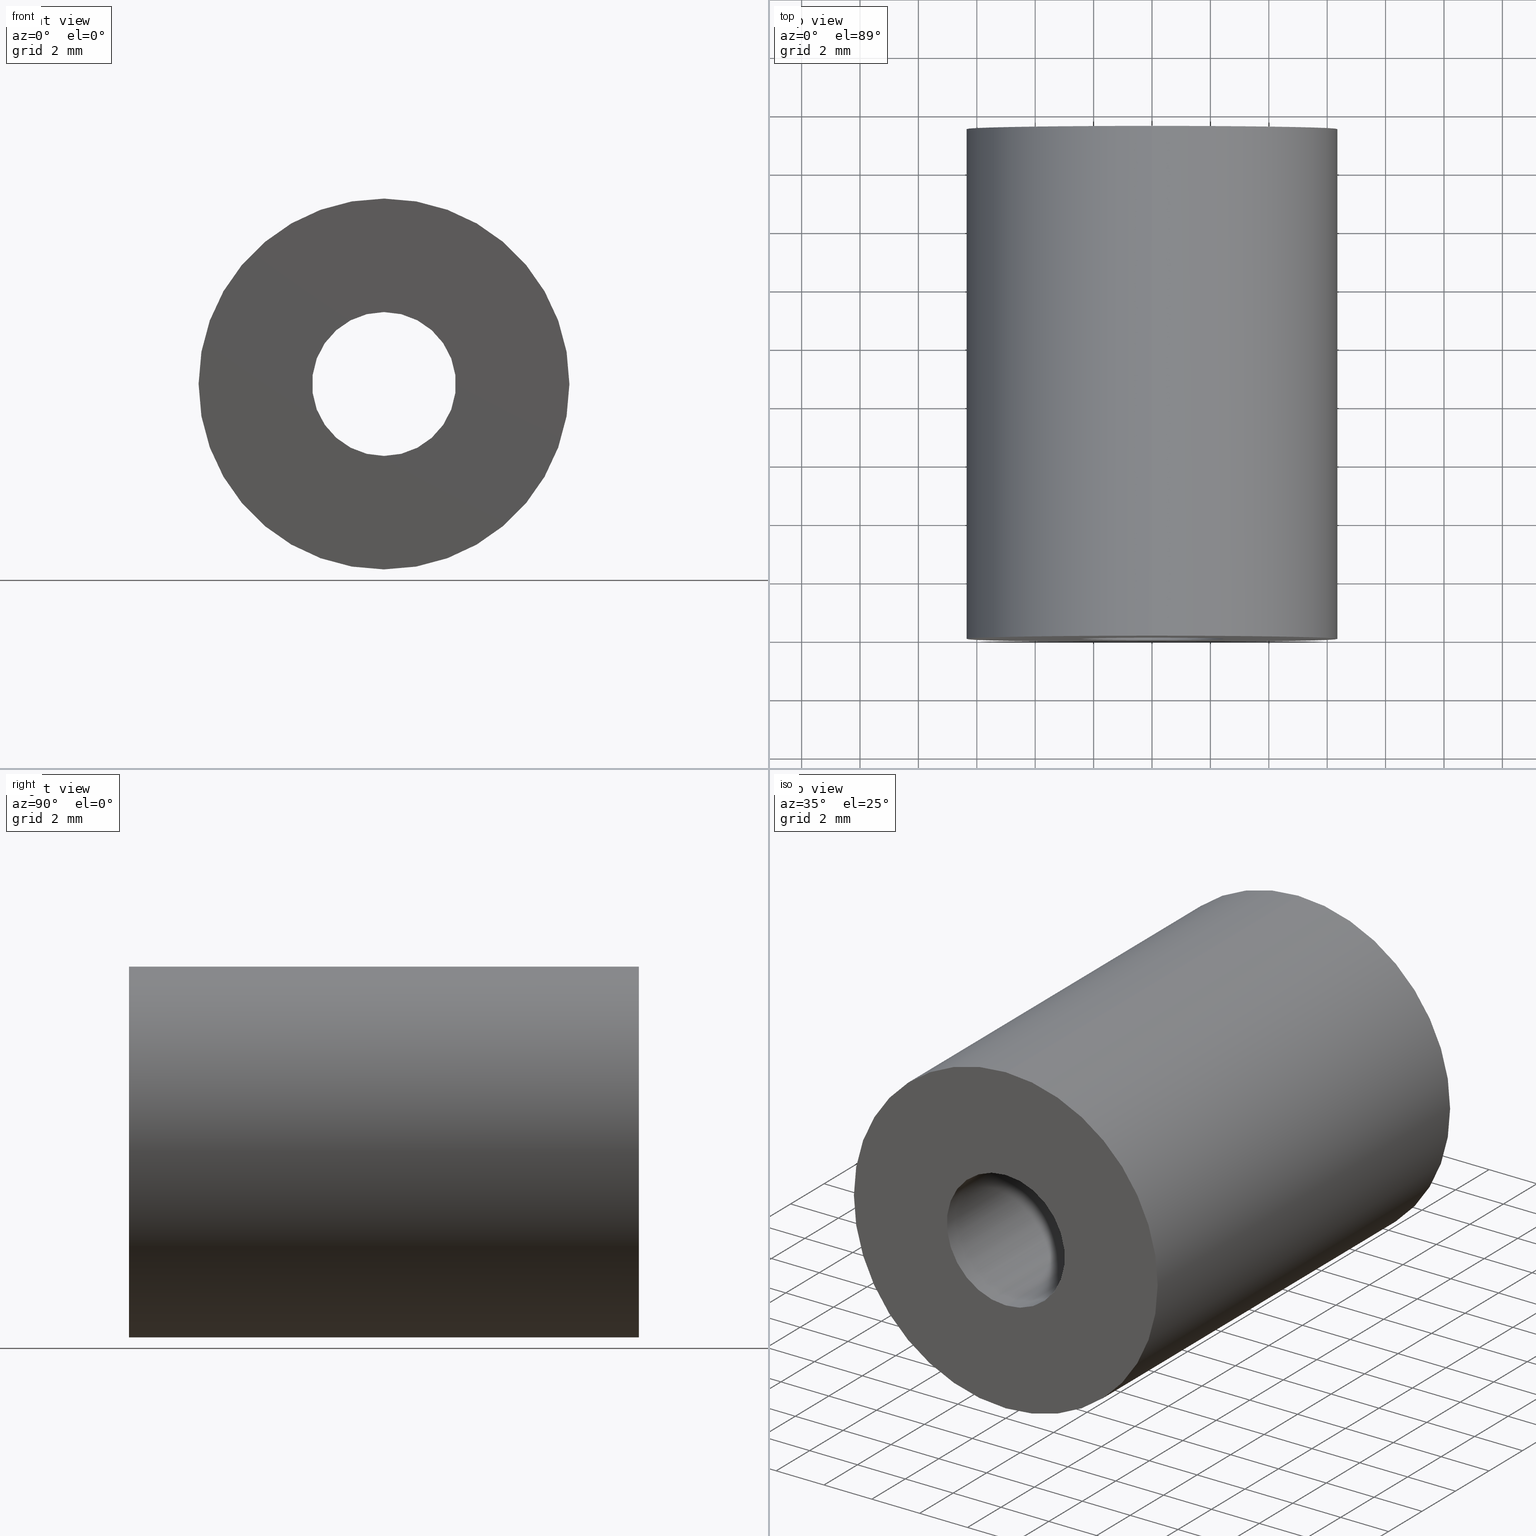
[diagram: canonical four-view strip — front | top / right | iso, engineering-drawing reading convention]
A machine part, canonical four-view strip (front | top / right | iso — engineering-drawing reading convention). The complete STEP part file that produces these views, byte-faithful:
ISO-10303-21;
HEADER;
FILE_DESCRIPTION (( 'STEP AP214' ),
    '1' );
FILE_NAME ('am-1240  11-16'''' Thick Nylon Spacer REV2.STEP',
    '2018-06-21T17:03:05',
    ( '' ),
    ( '' ),
    'SwSTEP 2.0',
    'SolidWorks 2017',
    '' );
FILE_SCHEMA (( 'AUTOMOTIVE_DESIGN' ));
ENDSEC;

DATA;
#1 = PRODUCT_DEFINITION_SHAPE ( 'NONE', 'NONE',  #87 ) ;
#2 = LINE ( 'NONE', #136, #22 ) ;
#3 = CIRCLE ( 'NONE', #106, 0.09700000000000000300 ) ;
#4 = UNCERTAINTY_MEASURE_WITH_UNIT (LENGTH_MEASURE( 1.000000000000000100E-005 ), #168, 'distance_accuracy_value', 'NONE');
#5 = AXIS2_PLACEMENT_3D ( 'NONE', #15, #33, #182 ) ;
#6 = DIRECTION ( 'NONE',  ( 0.0000000000000000000, 1.000000000000000000, 0.0000000000000000000 ) ) ;
#7 = LINE ( 'NONE', #59, #86 ) ;
#8 = EDGE_LOOP ( 'NONE', ( #67, #135 ) ) ;
#9 = DIRECTION ( 'NONE',  ( -0.0000000000000000000, -1.000000000000000000, -0.0000000000000000000 ) ) ;
#10 = CARTESIAN_POINT ( 'NONE',  ( 3.061616997868383000E-017, 0.0000000000000000000, 0.2500000000000000000 ) ) ;
#11 = FACE_BOUND ( 'NONE', #89, .T. ) ;
#12 = CARTESIAN_POINT ( 'NONE',  ( 0.0000000000000000000, 0.0000000000000000000, 0.0000000000000000000 ) ) ;
#13 = CARTESIAN_POINT ( 'NONE',  ( 0.0000000000000000000, 0.6875000000000000000, 0.0000000000000000000 ) ) ;
#14 = EDGE_CURVE ( 'NONE', #208, #220, #95, .T. ) ;
#15 = CARTESIAN_POINT ( 'NONE',  ( 0.0000000000000000000, 0.6875000000000000000, 0.0000000000000000000 ) ) ;
#16 = ORIENTED_EDGE ( 'NONE', *, *, #126, .F. ) ;
#17 = CYLINDRICAL_SURFACE ( 'NONE', #153, 0.2500000000000000000 ) ;
#18 = VERTEX_POINT ( 'NONE', #97 ) ;
#19 = ORIENTED_EDGE ( 'NONE', *, *, #68, .F. ) ;
#20 = FACE_OUTER_BOUND ( 'NONE', #183, .T. ) ;
#21 = ADVANCED_FACE ( 'NONE', ( #146 ), #36, .F. ) ;
#22 = VECTOR ( 'NONE', #117, 39.37007874015748100 ) ;
#23 = CARTESIAN_POINT ( 'NONE',  ( 0.0000000000000000000, 0.6875000000000000000, 0.0000000000000000000 ) ) ;
#24 = SHAPE_DEFINITION_REPRESENTATION ( #1, #138 ) ;
#25 =( GEOMETRIC_REPRESENTATION_CONTEXT ( 3 ) GLOBAL_UNCERTAINTY_ASSIGNED_CONTEXT ( ( #4 ) ) GLOBAL_UNIT_ASSIGNED_CONTEXT ( ( #168, #174, #47 ) ) REPRESENTATION_CONTEXT ( 'NONE', 'WORKASPACE' ) );
#26 = DIRECTION ( 'NONE',  ( 0.0000000000000000000, 1.000000000000000000, 0.0000000000000000000 ) ) ;
#27 = DIRECTION ( 'NONE',  ( 0.0000000000000000000, 0.0000000000000000000, -1.000000000000000000 ) ) ;
#28 = ORIENTED_EDGE ( 'NONE', *, *, #126, .T. ) ;
#29 = DIRECTION ( 'NONE',  ( -0.0000000000000000000, -1.000000000000000000, -0.0000000000000000000 ) ) ;
#30 = CARTESIAN_POINT ( 'NONE',  ( 0.0000000000000000000, 0.6875000000000000000, 0.0000000000000000000 ) ) ;
#31 = CARTESIAN_POINT ( 'NONE',  ( 0.0000000000000000000, 0.6875000000000000000, -0.09700000000000000300 ) ) ;
#32 = CIRCLE ( 'NONE', #56, 0.2500000000000000000 ) ;
#33 = DIRECTION ( 'NONE',  ( 0.0000000000000000000, 1.000000000000000000, 0.0000000000000000000 ) ) ;
#34 = DIRECTION ( 'NONE',  ( 0.0000000000000000000, 0.0000000000000000000, 1.000000000000000000 ) ) ;
#35 = DIRECTION ( 'NONE',  ( 1.000000000000000000, 0.0000000000000000000, 0.0000000000000000000 ) ) ;
#36 = CYLINDRICAL_SURFACE ( 'NONE', #100, 0.09700000000000000300 ) ;
#37 = EDGE_CURVE ( 'NONE', #74, #18, #123, .T. ) ;
#38 = ORIENTED_EDGE ( 'NONE', *, *, #43, .F. ) ;
#39 = DIMENSIONAL_EXPONENTS ( 1.000000000000000000, 0.0000000000000000000, 0.0000000000000000000, 0.0000000000000000000, 0.0000000000000000000, 0.0000000000000000000, 0.0000000000000000000 ) ;
#40 = CIRCLE ( 'NONE', #48, 0.2500000000000000000 ) ;
#41 = DIRECTION ( 'NONE',  ( 0.0000000000000000000, 1.000000000000000000, 0.0000000000000000000 ) ) ;
#42 = ORIENTED_EDGE ( 'NONE', *, *, #94, .T. ) ;
#43 = EDGE_CURVE ( 'NONE', #220, #208, #3, .T. ) ;
#44 = CARTESIAN_POINT ( 'NONE',  ( 1.187907395172932600E-017, 0.0000000000000000000, 0.09700000000000000300 ) ) ;
#45 = FACE_OUTER_BOUND ( 'NONE', #115, .T. ) ;
#46 = COLOUR_RGB ( '',1.000000000000000000, 1.000000000000000000, 1.000000000000000000 ) ;
#47 =( NAMED_UNIT ( * ) SI_UNIT ( $, .STERADIAN. ) SOLID_ANGLE_UNIT ( ) );
#48 = AXIS2_PLACEMENT_3D ( 'NONE', #112, #6, #211 ) ;
#49 = DIRECTION ( 'NONE',  ( -0.0000000000000000000, -1.000000000000000000, -0.0000000000000000000 ) ) ;
#50 =( CONVERSION_BASED_UNIT ( 'INCH', #119 ) LENGTH_UNIT ( ) NAMED_UNIT ( #92 ) );
#51 = ORIENTED_EDGE ( 'NONE', *, *, #121, .T. ) ;
#52 = PRODUCT_CONTEXT ( 'NONE', #79, 'mechanical' ) ;
#53 = AXIS2_PLACEMENT_3D ( 'NONE', #23, #178, #145 ) ;
#54 = COLOUR_RGB ( '',1.000000000000000000, 1.000000000000000000, 1.000000000000000000 ) ;
#55 = EDGE_CURVE ( 'NONE', #74, #129, #7, .T. ) ;
#56 = AXIS2_PLACEMENT_3D ( 'NONE', #169, #76, #199 ) ;
#57 = CYLINDRICAL_SURFACE ( 'NONE', #114, 0.09700000000000000300 ) ;
#58 = ORIENTED_EDGE ( 'NONE', *, *, #55, .T. ) ;
#59 = CARTESIAN_POINT ( 'NONE',  ( 3.061616997868383000E-017, 0.6875000000000000000, 0.2500000000000000000 ) ) ;
#60 = UNCERTAINTY_MEASURE_WITH_UNIT (LENGTH_MEASURE( 1.000000000000000100E-005 ), #103, 'distance_accuracy_value', 'NONE');
#61 = FACE_OUTER_BOUND ( 'NONE', #8, .T. ) ;
#62 = ORIENTED_EDGE ( 'NONE', *, *, #14, .F. ) ;
#63 =( LENGTH_UNIT ( ) NAMED_UNIT ( * ) SI_UNIT ( $, .METRE. ) );
#64 = DIRECTION ( 'NONE',  ( 0.0000000000000000000, 1.000000000000000000, 0.0000000000000000000 ) ) ;
#65 = STYLED_ITEM ( 'NONE', ( #212 ), #138 ) ;
#66 = VECTOR ( 'NONE', #29, 39.37007874015748100 ) ;
#67 = ORIENTED_EDGE ( 'NONE', *, *, #75, .T. ) ;
#68 = EDGE_CURVE ( 'NONE', #217, #141, #132, .T. ) ;
#69 = PRODUCT_DEFINITION_FORMATION_WITH_SPECIFIED_SOURCE ( 'ANY', '', #194, .NOT_KNOWN. ) ;
#70 = CARTESIAN_POINT ( 'NONE',  ( 0.0000000000000000000, 0.0000000000000000000, -0.2500000000000000000 ) ) ;
#71 = CARTESIAN_POINT ( 'NONE',  ( 0.0000000000000000000, 0.0000000000000000000, 0.0000000000000000000 ) ) ;
#72 =( GEOMETRIC_REPRESENTATION_CONTEXT ( 3 ) GLOBAL_UNCERTAINTY_ASSIGNED_CONTEXT ( ( #105 ) ) GLOBAL_UNIT_ASSIGNED_CONTEXT ( ( #50, #221, #83 ) ) REPRESENTATION_CONTEXT ( 'NONE', 'WORKASPACE' ) );
#73 = CARTESIAN_POINT ( 'NONE',  ( 0.0000000000000000000, 0.6875000000000000000, 0.0000000000000000000 ) ) ;
#74 = VERTEX_POINT ( 'NONE', #147 ) ;
#75 = EDGE_CURVE ( 'NONE', #18, #74, #40, .T. ) ;
#76 = DIRECTION ( 'NONE',  ( 0.0000000000000000000, 1.000000000000000000, 0.0000000000000000000 ) ) ;
#77 = CARTESIAN_POINT ( 'NONE',  ( 0.0000000000000000000, 0.6875000000000000000, -0.09700000000000000300 ) ) ;
#78 = FACE_OUTER_BOUND ( 'NONE', #193, .T. ) ;
#79 = APPLICATION_CONTEXT ( 'automotive_design' ) ;
#80 = DIRECTION ( 'NONE',  ( 0.0000000000000000000, -0.0000000000000000000, 1.000000000000000000 ) ) ;
#81 = CIRCLE ( 'NONE', #107, 0.2500000000000000000 ) ;
#82 = EDGE_LOOP ( 'NONE', ( #99, #51, #28, #62 ) ) ;
#83 =( NAMED_UNIT ( * ) SI_UNIT ( $, .STERADIAN. ) SOLID_ANGLE_UNIT ( ) );
#84 = VERTEX_POINT ( 'NONE', #70 ) ;
#85 = SURFACE_SIDE_STYLE ('',( #104 ) ) ;
#86 = VECTOR ( 'NONE', #127, 39.37007874015748100 ) ;
#87 = PRODUCT_DEFINITION ( 'UNKNOWN', '', #69, #209 ) ;
#88 = DIMENSIONAL_EXPONENTS ( 1.000000000000000000, 0.0000000000000000000, 0.0000000000000000000, 0.0000000000000000000, 0.0000000000000000000, 0.0000000000000000000, 0.0000000000000000000 ) ;
#89 = EDGE_LOOP ( 'NONE', ( #19, #176 ) ) ;
#90 = PRODUCT_RELATED_PRODUCT_CATEGORY ( 'part', '', ( #194 ) ) ;
#91 = AXIS2_PLACEMENT_3D ( 'NONE', #71, #163, #128 ) ;
#92 = DIMENSIONAL_EXPONENTS ( 1.000000000000000000, 0.0000000000000000000, 0.0000000000000000000, 0.0000000000000000000, 0.0000000000000000000, 0.0000000000000000000, 0.0000000000000000000 ) ;
#93 = DIRECTION ( 'NONE',  ( 0.0000000000000000000, 0.0000000000000000000, 1.000000000000000000 ) ) ;
#94 = EDGE_CURVE ( 'NONE', #84, #129, #81, .T. ) ;
#95 = CIRCLE ( 'NONE', #91, 0.09700000000000000300 ) ;
#96 = EDGE_LOOP ( 'NONE', ( #124, #164 ) ) ;
#97 = CARTESIAN_POINT ( 'NONE',  ( 0.0000000000000000000, 0.6875000000000000000, -0.2500000000000000000 ) ) ;
#98 = FILL_AREA_STYLE_COLOUR ( '', #46 ) ;
#99 = ORIENTED_EDGE ( 'NONE', *, *, #110, .F. ) ;
#100 = AXIS2_PLACEMENT_3D ( 'NONE', #197, #166, #213 ) ;
#101 = DIRECTION ( 'NONE',  ( 0.0000000000000000000, 1.000000000000000000, 0.0000000000000000000 ) ) ;
#102 = CIRCLE ( 'NONE', #139, 0.09700000000000000300 ) ;
#103 =( CONVERSION_BASED_UNIT ( 'INCH', #158 ) LENGTH_UNIT ( ) NAMED_UNIT ( #39 ) );
#104 = SURFACE_STYLE_FILL_AREA ( #202 ) ;
#105 = UNCERTAINTY_MEASURE_WITH_UNIT (LENGTH_MEASURE( 1.000000000000000100E-005 ), #50, 'distance_accuracy_value', 'NONE');
#106 = AXIS2_PLACEMENT_3D ( 'NONE', #179, #41, #93 ) ;
#107 = AXIS2_PLACEMENT_3D ( 'NONE', #148, #64, #186 ) ;
#108 = ORIENTED_EDGE ( 'NONE', *, *, #68, .T. ) ;
#109 = ADVANCED_FACE ( 'NONE', ( #45 ), #17, .T. ) ;
#110 = EDGE_CURVE ( 'NONE', #141, #208, #2, .T. ) ;
#111 = ORIENTED_EDGE ( 'NONE', *, *, #94, .F. ) ;
#112 = CARTESIAN_POINT ( 'NONE',  ( 0.0000000000000000000, 0.6875000000000000000, 0.0000000000000000000 ) ) ;
#113 = CARTESIAN_POINT ( 'NONE',  ( 0.0000000000000000000, 0.6875000000000000000, 0.0000000000000000000 ) ) ;
#114 = AXIS2_PLACEMENT_3D ( 'NONE', #30, #49, #201 ) ;
#115 = EDGE_LOOP ( 'NONE', ( #206, #58, #198, #140 ) ) ;
#116 = AXIS2_PLACEMENT_3D ( 'NONE', #113, #26, #165 ) ;
#117 = DIRECTION ( 'NONE',  ( -0.0000000000000000000, -1.000000000000000000, -0.0000000000000000000 ) ) ;
#118 = SURFACE_SIDE_STYLE ('',( #210 ) ) ;
#119 = LENGTH_MEASURE_WITH_UNIT ( LENGTH_MEASURE( 0.02539999999999999900 ), #207 );
#120 = SURFACE_STYLE_USAGE ( .BOTH. , #118 ) ;
#121 = EDGE_CURVE ( 'NONE', #141, #217, #102, .T. ) ;
#122 = ADVANCED_FACE ( 'NONE', ( #20 ), #216, .T. ) ;
#123 = CIRCLE ( 'NONE', #53, 0.2500000000000000000 ) ;
#124 = ORIENTED_EDGE ( 'NONE', *, *, #43, .T. ) ;
#125 = ADVANCED_FACE ( 'NONE', ( #78, #181 ), #218, .F. ) ;
#126 = EDGE_CURVE ( 'NONE', #217, #220, #161, .T. ) ;
#127 = DIRECTION ( 'NONE',  ( -0.0000000000000000000, -1.000000000000000000, -0.0000000000000000000 ) ) ;
#128 = DIRECTION ( 'NONE',  ( 0.0000000000000000000, 0.0000000000000000000, 1.000000000000000000 ) ) ;
#129 = VERTEX_POINT ( 'NONE', #10 ) ;
#130 = FILL_AREA_STYLE ('',( #151 ) ) ;
#131 = CARTESIAN_POINT ( 'NONE',  ( 1.187907395172932600E-017, 0.6875000000000000000, 0.09700000000000000300 ) ) ;
#132 = CIRCLE ( 'NONE', #116, 0.09700000000000000300 ) ;
#133 =( NAMED_UNIT ( * ) SI_UNIT ( $, .STERADIAN. ) SOLID_ANGLE_UNIT ( ) );
#134 = EDGE_CURVE ( 'NONE', #18, #84, #196, .T. ) ;
#135 = ORIENTED_EDGE ( 'NONE', *, *, #37, .T. ) ;
#136 = CARTESIAN_POINT ( 'NONE',  ( 1.187907395172932600E-017, 0.6875000000000000000, 0.09700000000000000300 ) ) ;
#137 = ORIENTED_EDGE ( 'NONE', *, *, #188, .F. ) ;
#138 = ADVANCED_BREP_SHAPE_REPRESENTATION ( 'am-1240  11-16'''''''' Thick Nylon Spacer REV2', ( #142, #185 ), #156 ) ;
#139 = AXIS2_PLACEMENT_3D ( 'NONE', #170, #101, #204 ) ;
#140 = ORIENTED_EDGE ( 'NONE', *, *, #134, .F. ) ;
#141 = VERTEX_POINT ( 'NONE', #131 ) ;
#142 = MANIFOLD_SOLID_BREP ( 'Boss-Extrude1', #160 ) ;
#143 = PRESENTATION_STYLE_ASSIGNMENT (( #120 ) ) ;
#144 = STYLED_ITEM ( 'NONE', ( #143 ), #142 ) ;
#145 = DIRECTION ( 'NONE',  ( 0.0000000000000000000, 0.0000000000000000000, 1.000000000000000000 ) ) ;
#146 = FACE_OUTER_BOUND ( 'NONE', #222, .T. ) ;
#147 = CARTESIAN_POINT ( 'NONE',  ( 3.061616997868383000E-017, 0.6875000000000000000, 0.2500000000000000000 ) ) ;
#148 = CARTESIAN_POINT ( 'NONE',  ( 0.0000000000000000000, 0.0000000000000000000, 0.0000000000000000000 ) ) ;
#149 = DIRECTION ( 'NONE',  ( -0.0000000000000000000, -1.000000000000000000, -0.0000000000000000000 ) ) ;
#150 =( NAMED_UNIT ( * ) PLANE_ANGLE_UNIT ( ) SI_UNIT ( $, .RADIAN. ) );
#151 = FILL_AREA_STYLE_COLOUR ( '', #54 ) ;
#152 =( LENGTH_UNIT ( ) NAMED_UNIT ( * ) SI_UNIT ( $, .METRE. ) );
#153 = AXIS2_PLACEMENT_3D ( 'NONE', #73, #9, #27 ) ;
#154 = SURFACE_STYLE_USAGE ( .BOTH. , #85 ) ;
#155 = APPLICATION_PROTOCOL_DEFINITION ( 'draft international standard', 'automotive_design', 1998, #205 ) ;
#156 =( GEOMETRIC_REPRESENTATION_CONTEXT ( 3 ) GLOBAL_UNCERTAINTY_ASSIGNED_CONTEXT ( ( #60 ) ) GLOBAL_UNIT_ASSIGNED_CONTEXT ( ( #103, #150, #133 ) ) REPRESENTATION_CONTEXT ( 'NONE', 'WORKASPACE' ) );
#157 = AXIS2_PLACEMENT_3D ( 'NONE', #13, #149, #175 ) ;
#158 = LENGTH_MEASURE_WITH_UNIT ( LENGTH_MEASURE( 0.02539999999999999900 ), #63 );
#159 = VECTOR ( 'NONE', #214, 39.37007874015748100 ) ;
#160 = CLOSED_SHELL ( 'NONE', ( #21, #109, #192, #125, #122, #195 ) ) ;
#161 = LINE ( 'NONE', #31, #159 ) ;
#162 = MECHANICAL_DESIGN_GEOMETRIC_PRESENTATION_REPRESENTATION (  '', ( #65 ), #72 ) ;
#163 = DIRECTION ( 'NONE',  ( 0.0000000000000000000, 1.000000000000000000, 0.0000000000000000000 ) ) ;
#164 = ORIENTED_EDGE ( 'NONE', *, *, #14, .T. ) ;
#165 = DIRECTION ( 'NONE',  ( 0.0000000000000000000, 0.0000000000000000000, 1.000000000000000000 ) ) ;
#166 = DIRECTION ( 'NONE',  ( -0.0000000000000000000, -1.000000000000000000, -0.0000000000000000000 ) ) ;
#167 = ORIENTED_EDGE ( 'NONE', *, *, #134, .T. ) ;
#168 =( CONVERSION_BASED_UNIT ( 'INCH', #171 ) LENGTH_UNIT ( ) NAMED_UNIT ( #88 ) );
#169 = CARTESIAN_POINT ( 'NONE',  ( 0.0000000000000000000, 0.0000000000000000000, 0.0000000000000000000 ) ) ;
#170 = CARTESIAN_POINT ( 'NONE',  ( 0.0000000000000000000, 0.6875000000000000000, 0.0000000000000000000 ) ) ;
#171 = LENGTH_MEASURE_WITH_UNIT ( LENGTH_MEASURE( 0.02539999999999999900 ), #152 );
#172 = ORIENTED_EDGE ( 'NONE', *, *, #55, .F. ) ;
#173 = AXIS2_PLACEMENT_3D ( 'NONE', #12, #187, #80 ) ;
#174 =( NAMED_UNIT ( * ) PLANE_ANGLE_UNIT ( ) SI_UNIT ( $, .RADIAN. ) );
#175 = DIRECTION ( 'NONE',  ( 0.0000000000000000000, 0.0000000000000000000, -1.000000000000000000 ) ) ;
#176 = ORIENTED_EDGE ( 'NONE', *, *, #121, .F. ) ;
#177 = ORIENTED_EDGE ( 'NONE', *, *, #75, .F. ) ;
#178 = DIRECTION ( 'NONE',  ( 0.0000000000000000000, 1.000000000000000000, 0.0000000000000000000 ) ) ;
#179 = CARTESIAN_POINT ( 'NONE',  ( 0.0000000000000000000, 0.0000000000000000000, 0.0000000000000000000 ) ) ;
#180 = PLANE ( 'NONE',  #5 ) ;
#181 = FACE_BOUND ( 'NONE', #96, .T. ) ;
#182 = DIRECTION ( 'NONE',  ( 0.0000000000000000000, -0.0000000000000000000, 1.000000000000000000 ) ) ;
#183 = EDGE_LOOP ( 'NONE', ( #172, #177, #167, #42 ) ) ;
#184 = APPLICATION_PROTOCOL_DEFINITION ( 'draft international standard', 'automotive_design', 1998, #79 ) ;
#185 = AXIS2_PLACEMENT_3D ( 'NONE', #189, #34, #35 ) ;
#186 = DIRECTION ( 'NONE',  ( 0.0000000000000000000, 0.0000000000000000000, 1.000000000000000000 ) ) ;
#187 = DIRECTION ( 'NONE',  ( 0.0000000000000000000, 1.000000000000000000, 0.0000000000000000000 ) ) ;
#188 = EDGE_CURVE ( 'NONE', #129, #84, #32, .T. ) ;
#189 = CARTESIAN_POINT ( 'NONE',  ( 0.0000000000000000000, 0.0000000000000000000, 0.0000000000000000000 ) ) ;
#190 = FACE_OUTER_BOUND ( 'NONE', #82, .T. ) ;
#191 = PRESENTATION_LAYER_ASSIGNMENT (  '', '', ( #144 ) ) ;
#192 = ADVANCED_FACE ( 'NONE', ( #61, #11 ), #180, .T. ) ;
#193 = EDGE_LOOP ( 'NONE', ( #111, #137 ) ) ;
#194 = PRODUCT ( 'am-1240  11-16'''''''' Thick Nylon Spacer REV2', 'am-1240  11-16'''''''' Thick Nylon Spacer REV2', '', ( #52 ) ) ;
#195 = ADVANCED_FACE ( 'NONE', ( #190 ), #57, .F. ) ;
#196 = LINE ( 'NONE', #219, #66 ) ;
#197 = CARTESIAN_POINT ( 'NONE',  ( 0.0000000000000000000, 0.6875000000000000000, 0.0000000000000000000 ) ) ;
#198 = ORIENTED_EDGE ( 'NONE', *, *, #188, .T. ) ;
#199 = DIRECTION ( 'NONE',  ( 0.0000000000000000000, 0.0000000000000000000, 1.000000000000000000 ) ) ;
#200 = PRESENTATION_LAYER_ASSIGNMENT (  '', '', ( #65 ) ) ;
#201 = DIRECTION ( 'NONE',  ( 0.0000000000000000000, 0.0000000000000000000, -1.000000000000000000 ) ) ;
#202 = FILL_AREA_STYLE ('',( #98 ) ) ;
#203 = ORIENTED_EDGE ( 'NONE', *, *, #110, .T. ) ;
#204 = DIRECTION ( 'NONE',  ( 0.0000000000000000000, 0.0000000000000000000, 1.000000000000000000 ) ) ;
#205 = APPLICATION_CONTEXT ( 'automotive_design' ) ;
#206 = ORIENTED_EDGE ( 'NONE', *, *, #37, .F. ) ;
#207 =( LENGTH_UNIT ( ) NAMED_UNIT ( * ) SI_UNIT ( $, .METRE. ) );
#208 = VERTEX_POINT ( 'NONE', #44 ) ;
#209 = PRODUCT_DEFINITION_CONTEXT ( 'detailed design', #205, 'design' ) ;
#210 = SURFACE_STYLE_FILL_AREA ( #130 ) ;
#211 = DIRECTION ( 'NONE',  ( 0.0000000000000000000, 0.0000000000000000000, 1.000000000000000000 ) ) ;
#212 = PRESENTATION_STYLE_ASSIGNMENT (( #154 ) ) ;
#213 = DIRECTION ( 'NONE',  ( 0.0000000000000000000, 0.0000000000000000000, -1.000000000000000000 ) ) ;
#214 = DIRECTION ( 'NONE',  ( -0.0000000000000000000, -1.000000000000000000, -0.0000000000000000000 ) ) ;
#215 = CARTESIAN_POINT ( 'NONE',  ( 0.0000000000000000000, 0.0000000000000000000, -0.09700000000000000300 ) ) ;
#216 = CYLINDRICAL_SURFACE ( 'NONE', #157, 0.2500000000000000000 ) ;
#217 = VERTEX_POINT ( 'NONE', #77 ) ;
#218 = PLANE ( 'NONE',  #173 ) ;
#219 = CARTESIAN_POINT ( 'NONE',  ( 0.0000000000000000000, 0.6875000000000000000, -0.2500000000000000000 ) ) ;
#220 = VERTEX_POINT ( 'NONE', #215 ) ;
#221 =( NAMED_UNIT ( * ) PLANE_ANGLE_UNIT ( ) SI_UNIT ( $, .RADIAN. ) );
#222 = EDGE_LOOP ( 'NONE', ( #108, #203, #38, #16 ) ) ;
#223 = MECHANICAL_DESIGN_GEOMETRIC_PRESENTATION_REPRESENTATION (  '', ( #144 ), #25 ) ;
ENDSEC;
END-ISO-10303-21;
